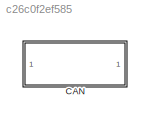
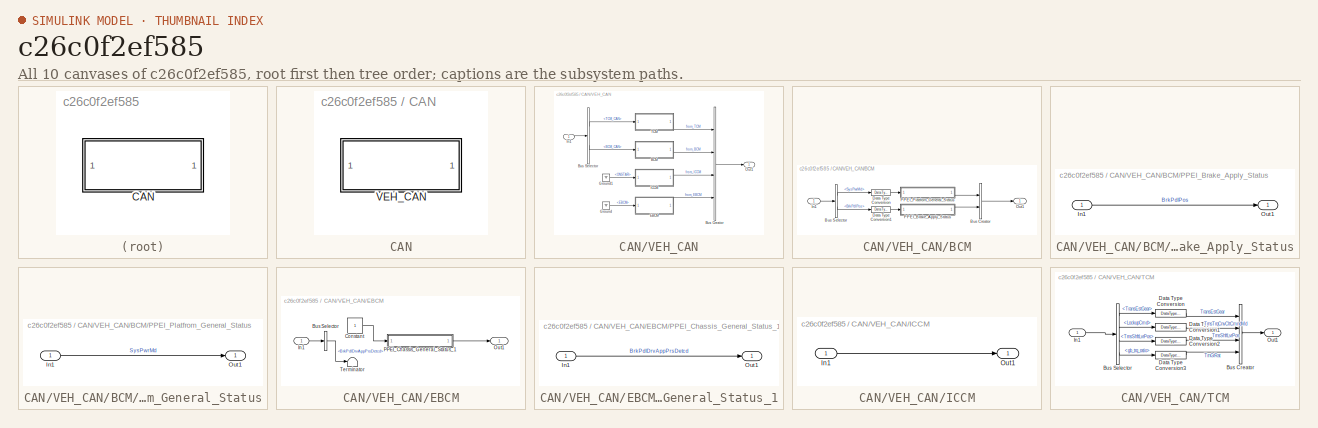
[diagram: thumbnail index - all 10 canvases of the model, root first then tree order]
MODEL slx_c26c0f2ef585
KIND library
CONFIG AbsTol = auto
CONFIG EnableMultiTasking = off
CONFIG FixedStep = auto
CONFIG MaxStep = auto
CONFIG MinStep = auto
CONFIG RelTol = 1e-3
CONFIG SampleTimeConstraint = Unconstrained
CONFIG Solver = VariableStepAuto
CONFIG SolverName = VariableStepAuto
CONFIG StartTime = 0.0
CONFIG StopTime = 10.0
BLOCK [SubSystem] CAN
  Ports = []
  RequestExecContextInheritance = off
  Variant = off
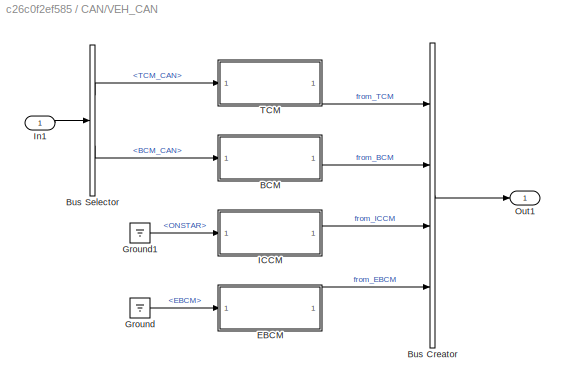
BLOCK [SubSystem] CAN/VEH_CAN
  Ports = [1, 1]
  RequestExecContextInheritance = off
  Variant = off
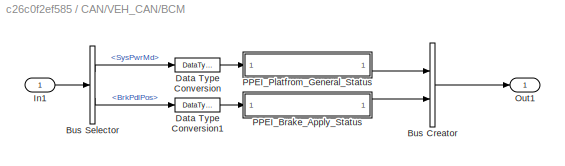
BLOCK [SubSystem] CAN/VEH_CAN/BCM
  Ports = [1, 1]
  RequestExecContextInheritance = off
  Variant = off
BLOCK [BusCreator] CAN/VEH_CAN/BCM/Bus Creator
  DisplayOption = bar
  InheritFromInputs = on
  Inputs = 2
  Ports = [2, 1]
BLOCK [BusSelector] CAN/VEH_CAN/BCM/Bus Selector
  OutputAsBus = off
  OutputSignals = SysPwrMd,BrkPdlPos
  Ports = [1, 2]
BLOCK [DataTypeConversion] CAN/VEH_CAN/BCM/Data Type Conversion
  RndMeth = Floor
  SaturateOnIntegerOverflow = off
BLOCK [DataTypeConversion] CAN/VEH_CAN/BCM/Data Type Conversion1
  RndMeth = Floor
  SaturateOnIntegerOverflow = off
BLOCK [Inport] CAN/VEH_CAN/BCM/In1
  IconDisplay = Port number
BLOCK [Outport] CAN/VEH_CAN/BCM/Out1
  IconDisplay = Port number
BLOCK [SubSystem] CAN/VEH_CAN/BCM/PPEI_Brake_Apply_Status
  Ports = [1, 1]
  RequestExecContextInheritance = off
  Variant = off
BLOCK [Inport] CAN/VEH_CAN/BCM/PPEI_Brake_Apply_Status/In1
  IconDisplay = Port number
BLOCK [Outport] CAN/VEH_CAN/BCM/PPEI_Brake_Apply_Status/Out1
  IconDisplay = Port number
BLOCK [SubSystem] CAN/VEH_CAN/BCM/PPEI_Platfrom_General_Status
  Ports = [1, 1]
  RequestExecContextInheritance = off
  Variant = off
BLOCK [Inport] CAN/VEH_CAN/BCM/PPEI_Platfrom_General_Status/In1
  IconDisplay = Port number
BLOCK [Outport] CAN/VEH_CAN/BCM/PPEI_Platfrom_General_Status/Out1
  IconDisplay = Port number
BLOCK [BusCreator] CAN/VEH_CAN/Bus Creator
  DisplayOption = bar
  InheritFromInputs = on
  Inputs = 4
  Ports = [4, 1]
BLOCK [BusSelector] CAN/VEH_CAN/Bus Selector
  OutputAsBus = off
  OutputSignals = TCM_CAN,BCM_CAN
  Ports = [1, 2]
BLOCK [SubSystem] CAN/VEH_CAN/EBCM
  Commented = on
  Ports = [1, 1]
  RequestExecContextInheritance = off
  Variant = off
BLOCK [BusSelector] CAN/VEH_CAN/EBCM/Bus Selector
  OutputAsBus = off
  OutputSignals = PPEI_Chassis_General_Status_1.BrkPdlDrvAppPrsDetcd
  Ports = [1, 1]
BLOCK [Constant] CAN/VEH_CAN/EBCM/Constant
  OutDataTypeStr = boolean
BLOCK [Inport] CAN/VEH_CAN/EBCM/In1
  IconDisplay = Port number
BLOCK [Outport] CAN/VEH_CAN/EBCM/Out1
  IconDisplay = Port number
BLOCK [SubSystem] CAN/VEH_CAN/EBCM/PPEI_Chassis_General_Status_1
  Ports = [1, 1]
  RequestExecContextInheritance = off
  Variant = off
BLOCK [Inport] CAN/VEH_CAN/EBCM/PPEI_Chassis_General_Status_1/In1
  IconDisplay = Port number
BLOCK [Outport] CAN/VEH_CAN/EBCM/PPEI_Chassis_General_Status_1/Out1
  IconDisplay = Port number
BLOCK [Terminator] CAN/VEH_CAN/EBCM/Terminator
BLOCK [Ground] CAN/VEH_CAN/Ground
  Commented = on
BLOCK [Ground] CAN/VEH_CAN/Ground1
  Commented = on
BLOCK [SubSystem] CAN/VEH_CAN/ICCM
  Commented = on
  Ports = [1, 1]
  RequestExecContextInheritance = off
  Variant = off
BLOCK [Inport] CAN/VEH_CAN/ICCM/In1
  IconDisplay = Port number
BLOCK [Outport] CAN/VEH_CAN/ICCM/Out1
  IconDisplay = Port number
BLOCK [Inport] CAN/VEH_CAN/In1
  IconDisplay = Port number
BLOCK [Outport] CAN/VEH_CAN/Out1
  IconDisplay = Port number
BLOCK [SubSystem] CAN/VEH_CAN/TCM
  Ports = [1, 1]
  RequestExecContextInheritance = off
  Variant = off
BLOCK [BusCreator] CAN/VEH_CAN/TCM/Bus Creator
  DisplayOption = bar
  InheritFromInputs = on
  Inputs = 4
  Ports = [4, 1]
BLOCK [BusSelector] CAN/VEH_CAN/TCM/Bus Selector
  OutputAsBus = off
  OutputSignals = TCM_to _Actuator.TransEstGear,TCM_to _Actuator.LockupCmd,TCM_to _Actuator.TrnsShftLvrPos,Sensors_to_TCM.gb_trq_ratio
  Ports = [1, 4]
BLOCK [DataTypeConversion] CAN/VEH_CAN/TCM/Data Type Conversion
  RndMeth = Floor
  SaturateOnIntegerOverflow = off
BLOCK [DataTypeConversion] CAN/VEH_CAN/TCM/Data Type Conversion1
  RndMeth = Floor
  SaturateOnIntegerOverflow = off
BLOCK [DataTypeConversion] CAN/VEH_CAN/TCM/Data Type Conversion2
  RndMeth = Floor
  SaturateOnIntegerOverflow = off
BLOCK [DataTypeConversion] CAN/VEH_CAN/TCM/Data Type Conversion3
  RndMeth = Floor
  SaturateOnIntegerOverflow = off
BLOCK [Inport] CAN/VEH_CAN/TCM/In1
  IconDisplay = Port number
BLOCK [Outport] CAN/VEH_CAN/TCM/Out1
  IconDisplay = Port number
LINE CAN/VEH_CAN/BCM/Bus Creator:1 -> CAN/VEH_CAN/BCM/Out1:1
LINE CAN/VEH_CAN/BCM/Bus Selector:1 -> CAN/VEH_CAN/BCM/Data Type Conversion:1
LINE CAN/VEH_CAN/BCM/Bus Selector:2 -> CAN/VEH_CAN/BCM/Data Type Conversion1:1
LINE CAN/VEH_CAN/BCM/Data Type Conversion1:1 -> CAN/VEH_CAN/BCM/PPEI_Brake_Apply_Status:1
LINE CAN/VEH_CAN/BCM/Data Type Conversion:1 -> CAN/VEH_CAN/BCM/PPEI_Platfrom_General_Status:1
LINE CAN/VEH_CAN/BCM/In1:1 -> CAN/VEH_CAN/BCM/Bus Selector:1
LINE CAN/VEH_CAN/BCM/PPEI_Brake_Apply_Status/In1:1 -> CAN/VEH_CAN/BCM/PPEI_Brake_Apply_Status/Out1:1
LINE CAN/VEH_CAN/BCM/PPEI_Brake_Apply_Status:1 -> CAN/VEH_CAN/BCM/Bus Creator:2
LINE CAN/VEH_CAN/BCM/PPEI_Platfrom_General_Status/In1:1 -> CAN/VEH_CAN/BCM/PPEI_Platfrom_General_Status/Out1:1
LINE CAN/VEH_CAN/BCM/PPEI_Platfrom_General_Status:1 -> CAN/VEH_CAN/BCM/Bus Creator:1
LINE CAN/VEH_CAN/BCM:1 -> CAN/VEH_CAN/Bus Creator:2
LINE CAN/VEH_CAN/Bus Creator:1 -> CAN/VEH_CAN/Out1:1
LINE CAN/VEH_CAN/Bus Selector:1 -> CAN/VEH_CAN/TCM:1
LINE CAN/VEH_CAN/Bus Selector:2 -> CAN/VEH_CAN/BCM:1
LINE CAN/VEH_CAN/EBCM/Bus Selector:1 -> CAN/VEH_CAN/EBCM/Terminator:1
LINE CAN/VEH_CAN/EBCM/Constant:1 -> CAN/VEH_CAN/EBCM/PPEI_Chassis_General_Status_1:1
LINE CAN/VEH_CAN/EBCM/In1:1 -> CAN/VEH_CAN/EBCM/Bus Selector:1
LINE CAN/VEH_CAN/EBCM/PPEI_Chassis_General_Status_1/In1:1 -> CAN/VEH_CAN/EBCM/PPEI_Chassis_General_Status_1/Out1:1
LINE CAN/VEH_CAN/EBCM/PPEI_Chassis_General_Status_1:1 -> CAN/VEH_CAN/EBCM/Out1:1
LINE CAN/VEH_CAN/EBCM:1 -> CAN/VEH_CAN/Bus Creator:4
LINE CAN/VEH_CAN/Ground1:1 -> CAN/VEH_CAN/ICCM:1
LINE CAN/VEH_CAN/Ground:1 -> CAN/VEH_CAN/EBCM:1
LINE CAN/VEH_CAN/ICCM/In1:1 -> CAN/VEH_CAN/ICCM/Out1:1
LINE CAN/VEH_CAN/ICCM:1 -> CAN/VEH_CAN/Bus Creator:3
LINE CAN/VEH_CAN/In1:1 -> CAN/VEH_CAN/Bus Selector:1
LINE CAN/VEH_CAN/TCM/Bus Creator:1 -> CAN/VEH_CAN/TCM/Out1:1
LINE CAN/VEH_CAN/TCM/Bus Selector:1 -> CAN/VEH_CAN/TCM/Data Type Conversion:1
LINE CAN/VEH_CAN/TCM/Bus Selector:2 -> CAN/VEH_CAN/TCM/Data Type Conversion1:1
LINE CAN/VEH_CAN/TCM/Bus Selector:3 -> CAN/VEH_CAN/TCM/Data Type Conversion2:1
LINE CAN/VEH_CAN/TCM/Bus Selector:4 -> CAN/VEH_CAN/TCM/Data Type Conversion3:1
LINE CAN/VEH_CAN/TCM/Data Type Conversion1:1 -> CAN/VEH_CAN/TCM/Bus Creator:2
LINE CAN/VEH_CAN/TCM/Data Type Conversion2:1 -> CAN/VEH_CAN/TCM/Bus Creator:3
LINE CAN/VEH_CAN/TCM/Data Type Conversion3:1 -> CAN/VEH_CAN/TCM/Bus Creator:4
LINE CAN/VEH_CAN/TCM/Data Type Conversion:1 -> CAN/VEH_CAN/TCM/Bus Creator:1
LINE CAN/VEH_CAN/TCM/In1:1 -> CAN/VEH_CAN/TCM/Bus Selector:1
LINE CAN/VEH_CAN/TCM:1 -> CAN/VEH_CAN/Bus Creator:1
